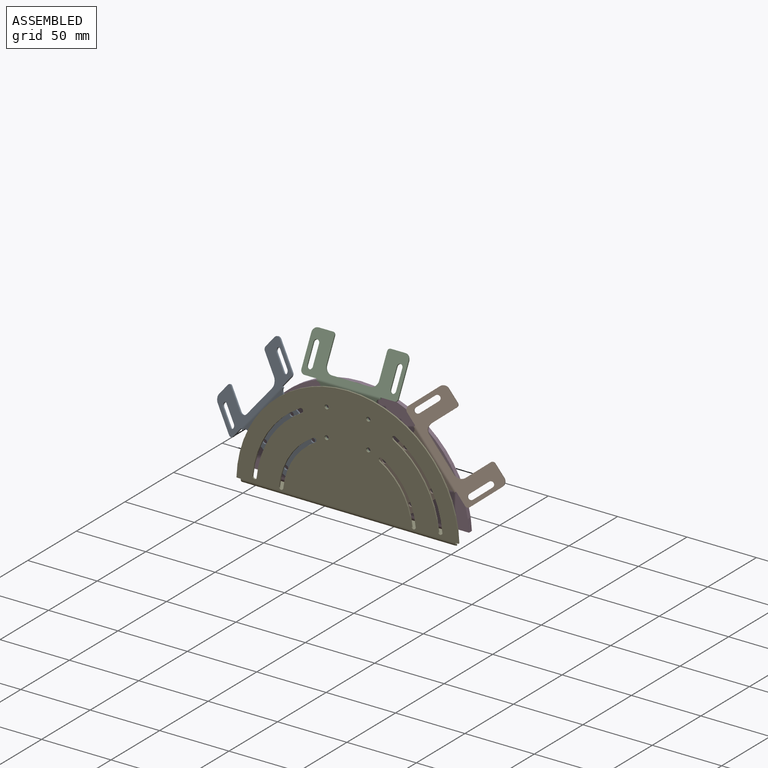
[diagram: assembled view]
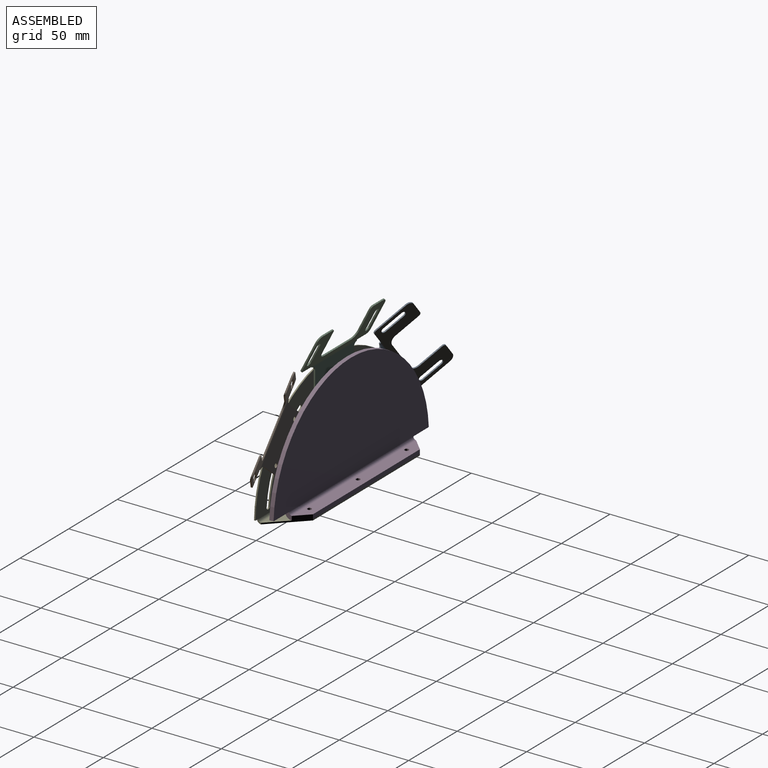
[diagram: assembled view, second angle]
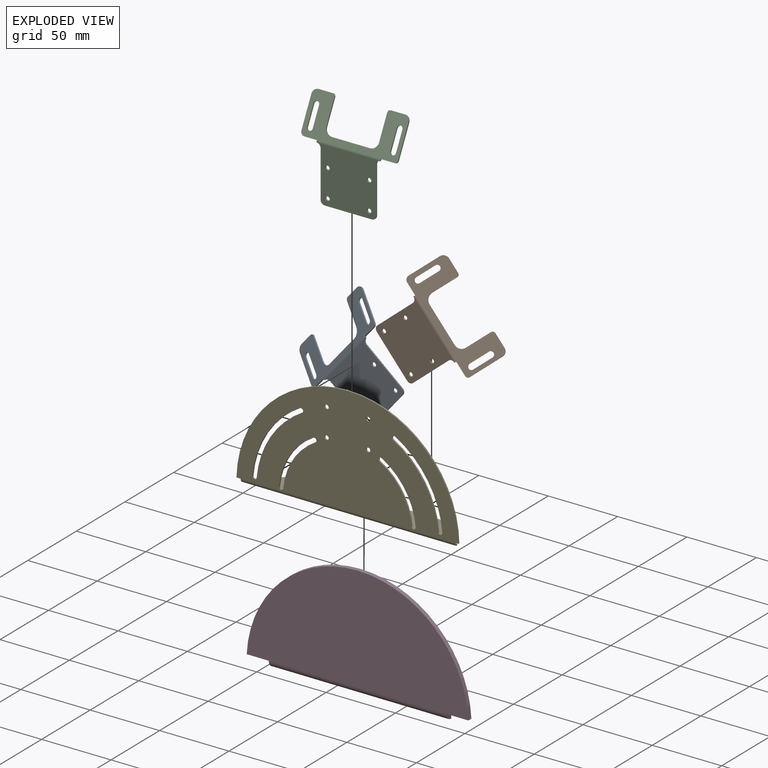
[diagram: exploded view]
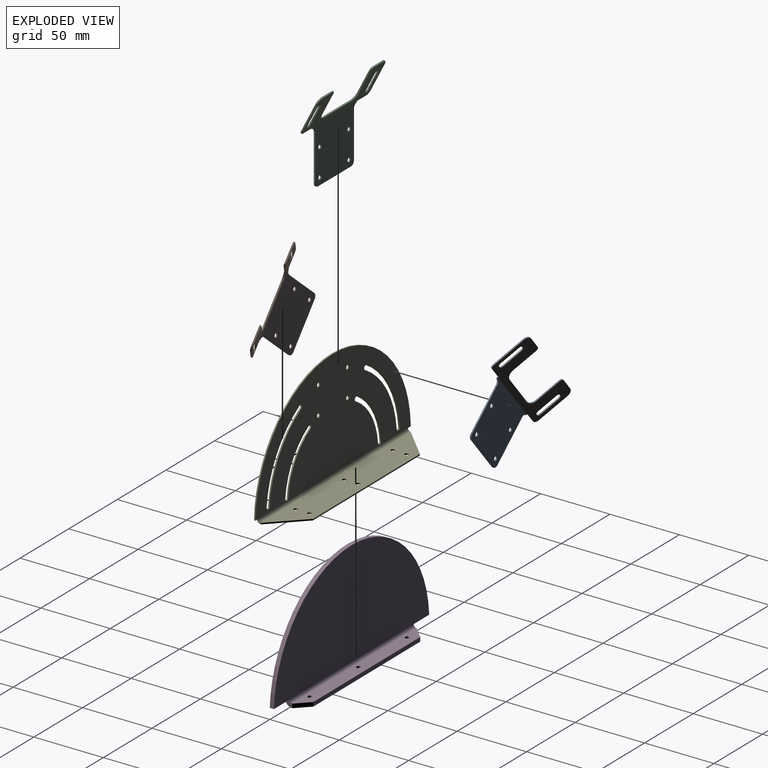
[diagram: exploded view, second angle]
ASSEMBLY  parts=5 mates=4
PART A: 44 faces, bbox 70x14.5x67 mm
  f0: cylinder r=3mm len=3mm, axis (0,-1,0), area 4.7mm2, adj f1,f11,f12,f41
  f1: plane 33.52x1mm, normal (1,0,0), area 33.5mm2, adj f0,f2,f11,f12
  f2: cylinder r=3mm len=3mm, axis (0,-1,0), area 4.7mm2, adj f1,f3,f11,f12
  f3: plane 34x1mm, normal (0,0,-1), area 34mm2, adj f2,f4,f11,f12
  f4: cylinder r=3mm len=3mm, axis (0,-1,0), area 4.7mm2, adj f3,f5,f11,f12
  f5: plane 33.52x1mm, normal (-1,0,0), area 33.5mm2, adj f4,f6,f11,f12
  f6: cylinder r=3mm len=3mm, axis (0,-1,0), area 4.7mm2, adj f5,f11,f12,f40
  f7: cylinder r=1.5mm len=3mm, axis (0,-1,0), area 9.4mm2, adj f11,f12
  f8: cylinder r=1.5mm len=3mm, axis (0,-1,0), area 9.4mm2, adj f11,f12
  f9: cylinder r=1.5mm len=3mm, axis (0,-1,0), area 9.4mm2, adj f11,f12
  f10: cylinder r=1.5mm len=3mm, axis (0,-1,0), area 9.4mm2, adj f11,f12
  f11: plane 46x39.52mm, normal (0,1,0), area 1552.5mm2, adj f0,f1,f2,f3,f4,f5,f6,f7
  f12: plane 46x39.52mm, normal (0,-1,0), area 1552.5mm2, adj f0,f1,f2,f3,f4,f5,f6,f7
  f13: plane 9x0.89mm, normal (0,-0.45,-0.89), area 9mm2, adj f33,f36,f37,f40
  f14: plane 10x0.89mm, normal (0,-0.45,-0.89), area 10mm2, adj f32,f36,f37,f41
  f15: plane 13.18x7.37mm, normal (1,0,0), area 14.3mm2, adj f16,f35,f36,f37
  f16: cylinder r=2mm len=4mm, axis (0,0.89,-0.45), area 6.3mm2, adj f15,f17,f36,f37
  f17: plane 13.18x7.37mm, normal (-1,0,0), area 14.3mm2, adj f16,f35,f36,f37
  f18: plane 13.18x7.37mm, normal (-1,0,0), area 14.3mm2, adj f19,f34,f36,f37
  f19: cylinder r=2mm len=4mm, axis (0,0.89,-0.45), area 6.3mm2, adj f18,f20,f36,f37
  f20: plane 13.18x7.37mm, normal (1,0,0), area 14.3mm2, adj f19,f34,f36,f37
  f21: plane 20.31x11.01mm, normal (-1,0,0), area 22.3mm2, adj f22,f33,f36,f37
  f22: cylinder r=4mm len=4.02mm, axis (0,0.89,-0.45), area 6.3mm2, adj f21,f23,f36,f37
  f23: plane 10x0.89mm, normal (0,0.45,0.89), area 10mm2, adj f22,f36,f37,f39
  f24: plane 16.49x9.06mm, normal (1,0,0), area 18mm2, adj f25,f36,f37,f39
  f25: cylinder r=5mm len=5mm, axis (0,0.89,-0.45), area 7.9mm2, adj f24,f26,f36,f37
  f26: plane 28x0.89mm, normal (0,0.45,0.89), area 28mm2, adj f25,f27,f36,f37
  f27: cylinder r=5mm len=5mm, axis (0,0.89,-0.45), area 7.9mm2, adj f26,f28,f36,f37
  f28: plane 16.49x9.06mm, normal (-1,0,0), area 18mm2, adj f27,f36,f37,f38
  f29: plane 10x0.89mm, normal (0,0.45,0.89), area 10mm2, adj f30,f36,f37,f38
  f30: cylinder r=4mm len=4.02mm, axis (0,0.89,-0.45), area 6.3mm2, adj f29,f31,f36,f37
  f31: plane 21.2x11.46mm, normal (1,0,0), area 23.3mm2, adj f30,f32,f36,f37
  f32: cylinder r=2mm len=2.24mm, axis (0,0.89,-0.45), area 3.1mm2, adj f14,f31,f36,f37
  f33: cylinder r=3mm len=3.13mm, axis (0,0.89,-0.45), area 4.7mm2, adj f13,f21,f36,f37
  f34: cylinder r=2mm len=4mm, axis (0,0.89,-0.45), area 6.3mm2, adj f18,f20,f36,f37
  f35: cylinder r=2mm len=4mm, axis (0,0.89,-0.45), area 6.3mm2, adj f15,f17,f36,f37
  f36: plane 70x26.09mm, normal (0,0.89,-0.45), area 959.6mm2, adj f13,f14,f15,f16,f17,f18,f19,f20
  f37: plane 70x26.09mm, normal (0,-0.89,0.45), area 959.6mm2, adj f13,f14,f15,f16,f17,f18,f19,f20
  f38: cylinder r=2mm len=2.24mm, axis (0,-0.89,0.45), area 3.1mm2, adj f28,f29,f36,f37
  f39: cylinder r=2mm len=2.24mm, axis (0,-0.89,0.45), area 3.1mm2, adj f23,f24,f36,f37
  f40: plane 1.36x1.22mm, normal (-1,0,0), area 1.2mm2, adj f6,f13,f42,f43
  f41: plane 1.36x1.22mm, normal (1,0,0), area 1.2mm2, adj f0,f14,f42,f43
  f42: cylinder r=3mm len=46mm, axis (-1,0,0), area 65mm2, adj f12,f37,f40,f41
  f43: cylinder r=2mm len=46mm, axis (-1,0,0), area 43.4mm2, adj f11,f36,f40,f41
PART B: same geometry as A
PART C: same geometry as A
PART D: 19 faces, bbox 159.8x14x81.2 mm
  f0: plane 15.91x3mm, normal (0,0,-1), area 47.7mm2, adj f2,f5,f6,f16
  f1: plane 3x0.46mm, normal (0,0,1), area 1.4mm2, adj f2,f4,f5,f6
  f2: cylinder r=80mm len=79.66mm, axis (0,1,0), area 363.6mm2, adj f0,f1,f5,f6
  f3: plane 15.91x3mm, normal (0,0,-1), area 47.7mm2, adj f4,f5,f6,f15
  f4: cylinder r=80mm len=79.68mm, axis (0,1,0), area 365mm2, adj f1,f3,f5,f6
  f5: plane 159.8x76.23mm, normal (0,-1,0), area 9413.4mm2, adj f0,f1,f2,f3,f4,f17
  f6: plane 159.8x76.23mm, normal (0,1,0), area 9413.4mm2, adj f0,f1,f2,f3,f4,f18
  f7: plane 9.01x9mm, normal (-0.71,0.71,0), area 38.2mm2, adj f8,f13,f14,f16
  f8: plane 110x3.32mm, normal (0,1,0), area 330mm2, adj f7,f9,f13,f14
  f9: plane 9.01x9mm, normal (0.71,0.71,0), area 38.2mm2, adj f8,f13,f14,f15
  f10: cylinder r=1.5mm len=3.01mm, axis (0,0,-1), area 28.3mm2, adj f13,f14
  f11: cylinder r=1.5mm len=3.01mm, axis (0,0,-1), area 28.3mm2, adj f13,f14
  f12: cylinder r=1.5mm len=3.01mm, axis (0,0,-1), area 28.3mm2, adj f13,f14
  f13: plane 127.99x9mm, normal (0,0,-1), area 1049.7mm2, adj f7,f8,f9,f10,f11,f12,f17
  f14: plane 127.99x9mm, normal (0,0,1), area 1049.7mm2, adj f7,f8,f9,f10,f11,f12,f18
  f15: plane 5x5mm, normal (1,0,0), area 16.5mm2, adj f3,f9,f17,f18
  f16: plane 5x5mm, normal (-1,0,0), area 16.5mm2, adj f0,f7,f17,f18
  f17: cylinder r=5mm len=128mm, axis (1,0,0), area 1005.2mm2, adj f5,f13,f15,f16
  f18: cylinder r=2mm len=127.99mm, axis (1,0,0), area 402.1mm2, adj f6,f14,f15,f16
PART E: 42 faces, bbox 159.9x25x81.2 mm
  f0: plane 2.98x1mm, normal (0,0,-1), area 3mm2, adj f13,f25,f26,f39
  f1: cylinder r=1.5mm len=2.99mm, axis (0,-1,0), area 4.7mm2, adj f2,f20,f25,f26
  f2: cylinder r=65.68mm len=51.06mm, axis (0,-1,0), area 63mm2, adj f1,f3,f25,f26
  f3: cylinder r=1.5mm len=2.8mm, axis (0,-1,0), area 4.7mm2, adj f2,f20,f25,f26
  f4: cylinder r=46.39mm len=36.07mm, axis (0,-1,0), area 44.5mm2, adj f5,f19,f25,f26
  f5: cylinder r=1.5mm len=2.8mm, axis (0,-1,0), area 4.7mm2, adj f4,f6,f25,f26
  f6: cylinder r=49.39mm len=38.4mm, axis (0,-1,0), area 47.4mm2, adj f5,f19,f25,f26
  f7: cylinder r=49.39mm len=38.54mm, axis (0,-1,0), area 47.4mm2, adj f8,f18,f25,f26
  f8: cylinder r=1.5mm len=2.8mm, axis (0,-1,0), area 4.7mm2, adj f7,f9,f25,f26
  f9: cylinder r=46.39mm len=36.2mm, axis (0,-1,0), area 44.5mm2, adj f8,f18,f25,f26
  f10: cylinder r=68.68mm len=53.59mm, axis (0,-1,0), area 65.9mm2, adj f11,f17,f25,f26
  f11: cylinder r=1.5mm len=2.8mm, axis (0,-1,0), area 4.7mm2, adj f10,f12,f25,f26
  f12: cylinder r=65.68mm len=51.25mm, axis (0,-1,0), area 63mm2, adj f11,f17,f25,f26
  f13: cylinder r=80mm len=79.74mm, axis (0,-1,0), area 123.2mm2, adj f0,f14,f25,f26
  f14: plane 1x0.46mm, normal (0,0,1), area 0.5mm2, adj f13,f15,f25,f26
  f15: cylinder r=80mm len=79.75mm, axis (0,-1,0), area 123.7mm2, adj f14,f16,f25,f26
  f16: plane 2.98x1mm, normal (0,0,-1), area 3mm2, adj f15,f25,f26,f38
  f17: cylinder r=1.5mm len=2.99mm, axis (0,-1,0), area 4.7mm2, adj f10,f12,f25,f26
  f18: cylinder r=1.5mm len=2.99mm, axis (0,-1,0), area 4.7mm2, adj f7,f9,f25,f26
  f19: cylinder r=1.5mm len=2.99mm, axis (0,-1,0), area 4.7mm2, adj f4,f6,f25,f26
  f20: cylinder r=68.68mm len=53.39mm, axis (0,-1,0), area 65.9mm2, adj f1,f3,f25,f26
  f21: cylinder r=1.5mm len=3mm, axis (0,-1,0), area 9.4mm2, adj f25,f26
  f22: cylinder r=1.5mm len=3mm, axis (0,-1,0), area 9.4mm2, adj f25,f26
  f23: cylinder r=1.5mm len=3mm, axis (0,-1,0), area 9.4mm2, adj f25,f26
  f24: cylinder r=1.5mm len=3mm, axis (0,-1,0), area 9.4mm2, adj f25,f26
  f25: plane 159.95x78.23mm, normal (0,1,0), area 9013.9mm2, adj f0,f1,f2,f3,f4,f5,f6,f7
  f26: plane 159.95x78.23mm, normal (0,-1,0), area 9013.9mm2, adj f0,f1,f2,f3,f4,f5,f6,f7
  f27: plane 109.99x1.32mm, normal (0,1,0), area 110mm2, adj f28,f35,f36,f37
  f28: plane 22x22mm, normal (-0.71,0.71,0), area 31.1mm2, adj f27,f36,f37,f39
  f29: cylinder r=1.5mm len=3mm, axis (0,0,1), area 9.4mm2, adj f36,f37
  f30: cylinder r=1.5mm len=3mm, axis (0,0,1), area 9.4mm2, adj f36,f37
  f31: cylinder r=1.5mm len=3mm, axis (0,0,1), area 9.4mm2, adj f36,f37
  f32: cylinder r=1.5mm len=3mm, axis (0,0,1), area 9.4mm2, adj f36,f37
  f33: cylinder r=1.5mm len=3mm, axis (0,0,1), area 9.4mm2, adj f36,f37
  f34: cylinder r=1.5mm len=3mm, axis (0,0,1), area 9.4mm2, adj f36,f37
  f35: plane 22x22mm, normal (0.71,0.71,0), area 31.1mm2, adj f27,f36,f37,f38
  f36: plane 153.99x22mm, normal (0,0,1), area 2861.3mm2, adj f27,f28,f29,f30,f31,f32,f33,f34
  f37: plane 153.99x22mm, normal (0,0,-1), area 2861.3mm2, adj f27,f28,f29,f30,f31,f32,f33,f34
  f38: plane 3x3mm, normal (1,0,0), area 3.9mm2, adj f16,f35,f40,f41
  f39: plane 3x3mm, normal (-1,0,0), area 3.9mm2, adj f0,f28,f40,f41
  f40: cylinder r=3mm len=154mm, axis (1,0,0), area 725.6mm2, adj f26,f37,f38,f39
  f41: cylinder r=2mm len=153.99mm, axis (1,0,0), area 483.8mm2, adj f25,f36,f38,f39
PLACE A rot(axis=(0,-1,0),50deg) t=(-312.04,-7.84,52.6)mm
PLACE B rot(axis=(0,1,0),50deg) t=(-143.18,-7.84,52.25)mm
PLACE C t=(-227.53,-7.84,91.79)mm fixed
PLACE D t=(-227.53,17.16,92.79)mm
PLACE E t=(-227.53,17.16,91.79)mm
MATE revolute B.f11 <-> C.f11  axis (0,1,0) through (-227.76,-7.84,-18.42)mm
MATE revolute A.f11 <-> C.f11  axis (0,1,0) through (-227.76,-7.84,-18.42)mm
MATE fastened E.f24 <-> C.f10  axis (0,1,0) through (-242.76,-8.84,47.56)mm
MATE fastened D.f11 <-> E.f31  axis (0,0,-1) through (-227.76,9.16,-17.92)mm
